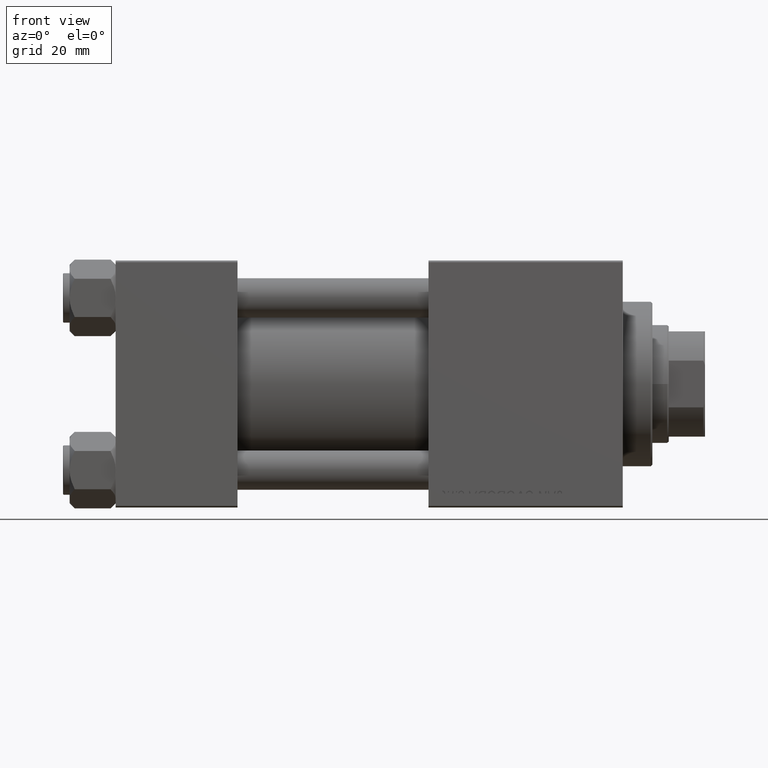
[diagram: clean part render]
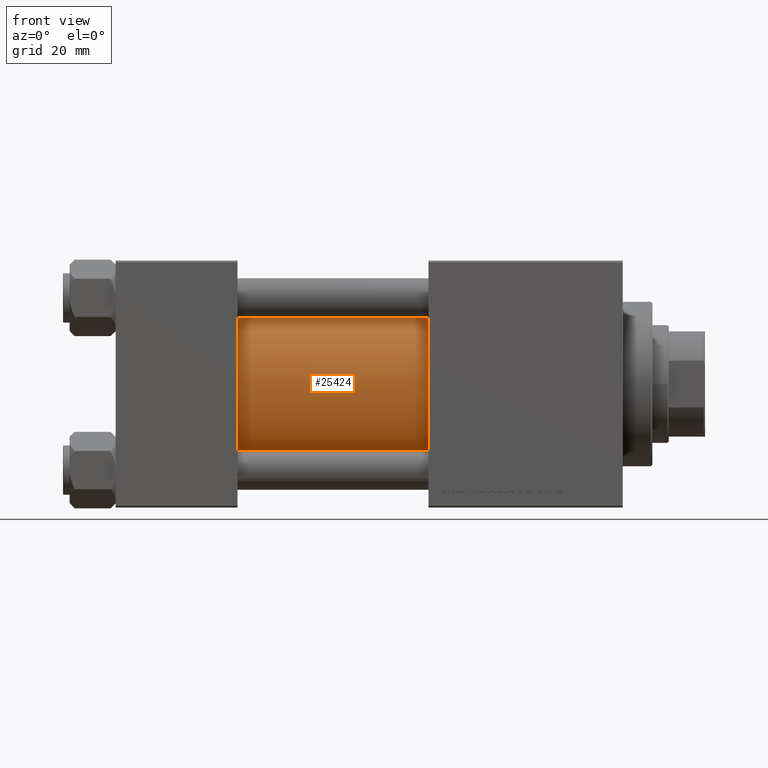
[diagram: same view with one face highlighted and labeled with its STEP entity id]
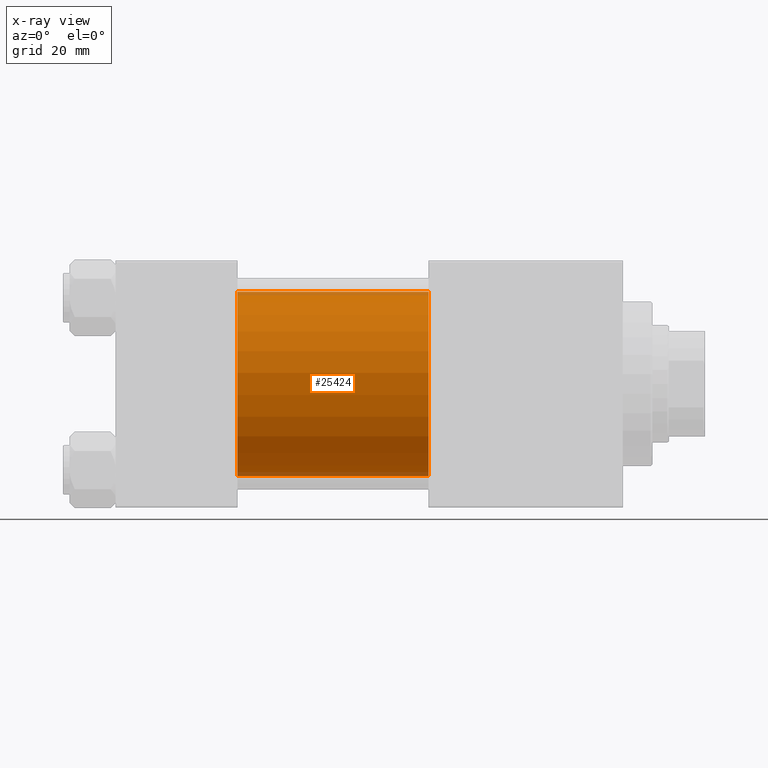
[diagram: x-ray of the same camera — body ghosted, the highlighted face saturated]
A machine part, front view. The second image highlights one B-rep face of the part: STEP entity #25424.
The next image is the same camera in x-ray: the body ghosted, the highlighted face saturated — about 4% of this face is hidden behind the body in this view.
In plain terms, the highlighted cylindrical surface (partial cylindrical patch) has radius 28 mm, axis along (-1, -0, -0).
Its self-contained STEP definition (entity closure, byte-faithful):
#3483 = DIRECTION ( 'NONE',  ( 0.000000000000000000, 0.000000000000000000, 1.000000000000000000 ) ) ;
#4753 = CARTESIAN_POINT ( 'NONE',  ( 95.00000000000000000, -2.602085213965210642E-15, 28.00000000000000000 ) ) ;
#5191 = VERTEX_POINT ( 'NONE', #45078 ) ;
#7798 = VERTEX_POINT ( 'NONE', #18866 ) ;
#8043 = LINE ( 'NONE', #4753, #37773 ) ;
#8950 = EDGE_CURVE ( 'NONE', #20702, #48225, #16546, .T. ) ;
#9021 = ORIENTED_EDGE ( 'NONE', *, *, #21386, .T. ) ;
#9457 = CIRCLE ( 'NONE', #44313, 28.00000000000000000 ) ;
#10583 = EDGE_LOOP ( 'NONE', ( #12656, #19932, #45871, #9021 ) ) ;
#11082 = DIRECTION ( 'NONE',  ( -1.000000000000000000, -0.000000000000000000, -0.000000000000000000 ) ) ;
#12378 = CARTESIAN_POINT ( 'NONE',  ( 95.00000000000000000, -2.602085213965210642E-15, 0.000000000000000000 ) ) ;
#12656 = ORIENTED_EDGE ( 'NONE', *, *, #8950, .F. ) ;
#15284 = DIRECTION ( 'NONE',  ( 0.000000000000000000, 0.000000000000000000, 1.000000000000000000 ) ) ;
#15968 = AXIS2_PLACEMENT_3D ( 'NONE', #45858, #11082, #3483 ) ;
#16546 = LINE ( 'NONE', #47777, #30837 ) ;
#18866 = CARTESIAN_POINT ( 'NONE',  ( 95.00000000000000000, -2.602085213965210642E-15, 28.00000000000000000 ) ) ;
#19878 = AXIS2_PLACEMENT_3D ( 'NONE', #30783, #49817, #15284 ) ;
#19932 = ORIENTED_EDGE ( 'NONE', *, *, #25150, .F. ) ;
#20702 = VERTEX_POINT ( 'NONE', #50063 ) ;
#21386 = EDGE_CURVE ( 'NONE', #5191, #48225, #47544, .T. ) ;
#22694 = EDGE_CURVE ( 'NONE', #7798, #5191, #8043, .T. ) ;
#25150 = EDGE_CURVE ( 'NONE', #7798, #20702, #9457, .T. ) ;
#25424 = ADVANCED_FACE ( 'NONE', ( #42306 ), #45610, .T. ) ;
#29294 = CARTESIAN_POINT ( 'NONE',  ( 37.00000000000000000, 8.269258236473776482E-16, -28.00000000000000000 ) ) ;
#30783 = CARTESIAN_POINT ( 'NONE',  ( 37.00000000000000000, -2.602085213965210642E-15, 0.000000000000000000 ) ) ;
#30837 = VECTOR ( 'NONE', #39907, 1000.000000000000000 ) ;
#37773 = VECTOR ( 'NONE', #47374, 1000.000000000000000 ) ;
#39907 = DIRECTION ( 'NONE',  ( -1.000000000000000000, -0.000000000000000000, -0.000000000000000000 ) ) ;
#40051 = DIRECTION ( 'NONE',  ( 0.000000000000000000, 0.000000000000000000, -1.000000000000000000 ) ) ;
#42306 = FACE_OUTER_BOUND ( 'NONE', #10583, .T. ) ;
#43860 = DIRECTION ( 'NONE',  ( 1.000000000000000000, 0.000000000000000000, 0.000000000000000000 ) ) ;
#44313 = AXIS2_PLACEMENT_3D ( 'NONE', #12378, #43860, #40051 ) ;
#45078 = CARTESIAN_POINT ( 'NONE',  ( 37.00000000000000000, -2.602085213965210642E-15, 28.00000000000000000 ) ) ;
#45610 = CYLINDRICAL_SURFACE ( 'NONE', #15968, 28.00000000000000000 ) ;
#45858 = CARTESIAN_POINT ( 'NONE',  ( 95.00000000000000000, -2.602085213965210642E-15, 0.000000000000000000 ) ) ;
#45871 = ORIENTED_EDGE ( 'NONE', *, *, #22694, .T. ) ;
#47374 = DIRECTION ( 'NONE',  ( -1.000000000000000000, -0.000000000000000000, -0.000000000000000000 ) ) ;
#47544 = CIRCLE ( 'NONE', #19878, 28.00000000000000000 ) ;
#47777 = CARTESIAN_POINT ( 'NONE',  ( 95.00000000000000000, 8.269258236473776482E-16, -28.00000000000000000 ) ) ;
#48225 = VERTEX_POINT ( 'NONE', #29294 ) ;
#49817 = DIRECTION ( 'NONE',  ( 1.000000000000000000, -0.000000000000000000, 0.000000000000000000 ) ) ;
#50063 = CARTESIAN_POINT ( 'NONE',  ( 95.00000000000000000, 8.269258236473776482E-16, -28.00000000000000000 ) ) ;